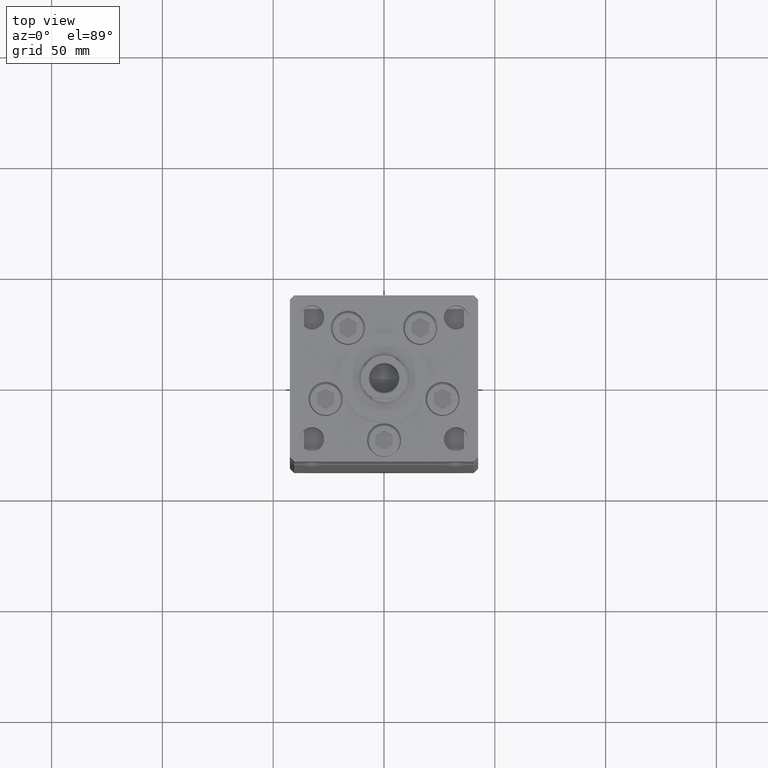
[diagram: clean part render]
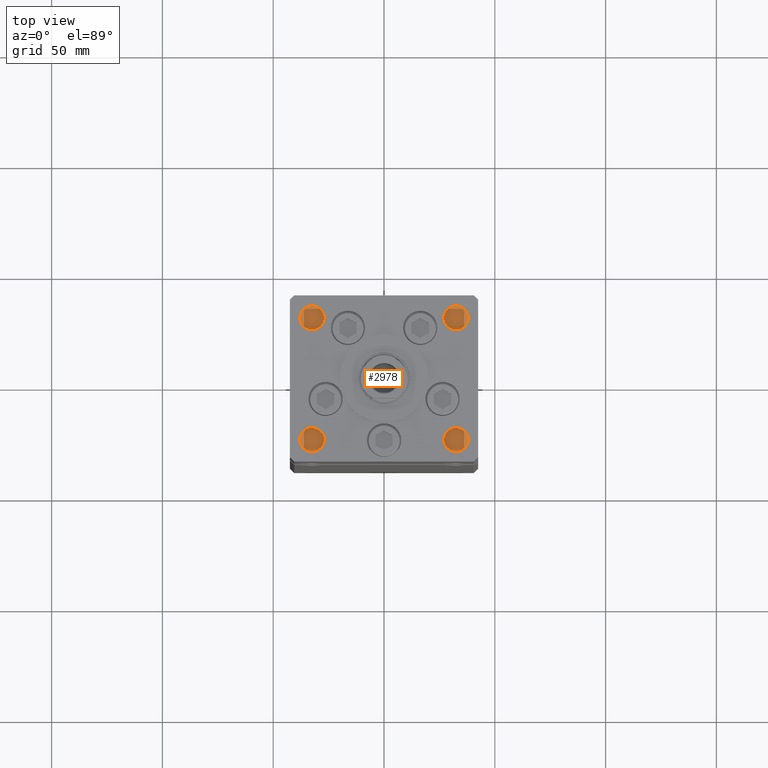
[diagram: same view with one face highlighted and labeled with its STEP entity id]
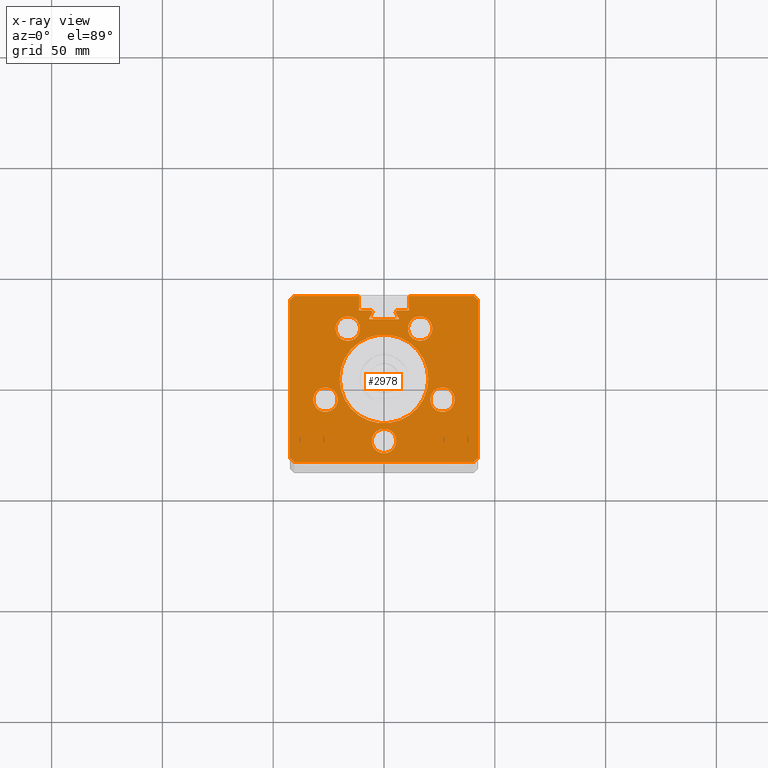
[diagram: x-ray of the same camera — body ghosted, the highlighted face saturated]
A machine part, top view. The second image highlights one B-rep face of the part: STEP entity #2978.
The next image is the same camera in x-ray: the body ghosted, the highlighted face saturated — about 0% of this face is hidden behind the body in this view.
In plain terms, the highlighted planar face has unit normal (0, 0, -1).
Its self-contained STEP definition (entity closure, byte-faithful):
#157 = DIRECTION ( 'NONE',  ( 0.000000000000000000, 1.000000000000000000, 0.000000000000000000 ) ) ;
#755 = ORIENTED_EDGE ( 'NONE', *, *, #21797, .F. ) ;
#1193 = CARTESIAN_POINT ( 'NONE',  ( 6.876153656360465938, 26.99999999999986855, 268.5000000000000000 ) ) ;
#1241 = VECTOR ( 'NONE', #157, 1000.000000000000000 ) ;
#1281 = VERTEX_POINT ( 'NONE', #1944 ) ;
#1813 = ORIENTED_EDGE ( 'NONE', *, *, #29935, .T. ) ;
#1944 = CARTESIAN_POINT ( 'NONE',  ( -5.375042956467946276, 29.59999999999899600, 268.4999999999999432 ) ) ;
#2127 = VERTEX_POINT ( 'NONE', #31535 ) ;
#2390 = CARTESIAN_POINT ( 'NONE',  ( -5.249999999999996447, 30.06666666666599852, 268.5000000000000000 ) ) ;
#2395 = ORIENTED_EDGE ( 'NONE', *, *, #21157, .T. ) ;
#2490 = VERTEX_POINT ( 'NONE', #5924 ) ;
#2543 = ORIENTED_EDGE ( 'NONE', *, *, #42906, .F. ) ;
#2668 = DIRECTION ( 'NONE',  ( 1.000000000000000000, 0.000000000000000000, 0.000000000000000000 ) ) ;
#2723 = ORIENTED_EDGE ( 'NONE', *, *, #47527, .F. ) ;
#2773 = CARTESIAN_POINT ( 'NONE',  ( -42.49999999999998579, -35.50000000000000711, 268.5000000000000000 ) ) ;
#2978 = ADVANCED_FACE ( 'NONE', ( #32462, #49374, #21162, #9034, #20644, #20887, #16869 ), #28689, .F. ) ;
#3154 = DIRECTION ( 'NONE',  ( 0.4999999999999993894, -0.8660254037844390407, 0.000000000000000000 ) ) ;
#3249 = EDGE_CURVE ( 'NONE', #31814, #48472, #27319, .T. ) ;
#3881 = DIRECTION ( 'NONE',  ( -0.7071067811865500152, -0.7071067811865451302, 0.000000000000000000 ) ) ;
#4047 = VERTEX_POINT ( 'NONE', #38860 ) ;
#4222 = CARTESIAN_POINT ( 'NONE',  ( 0.000000000000000000, 0.000000000000000000, 268.5000000000000000 ) ) ;
#4441 = CARTESIAN_POINT ( 'NONE',  ( 1.714505518806294638E-15, -28.00000000000000000, 268.5000000000000000 ) ) ;
#4911 = DIRECTION ( 'NONE',  ( 0.7071067811865500152, -0.7071067811865451302, 0.000000000000000000 ) ) ;
#5236 = VERTEX_POINT ( 'NONE', #27316 ) ;
#5411 = EDGE_CURVE ( 'NONE', #11377, #51590, #25384, .T. ) ;
#5638 = LINE ( 'NONE', #10674, #32192 ) ;
#5641 = EDGE_CURVE ( 'NONE', #2490, #50063, #14970, .T. ) ;
#5924 = CARTESIAN_POINT ( 'NONE',  ( 20.89865316429777309, -9.333333333333339255, 268.5000000000000000 ) ) ;
#6040 = VERTEX_POINT ( 'NONE', #47175 ) ;
#6063 = VECTOR ( 'NONE', #3881, 1000.000000000000114 ) ;
#6450 = EDGE_CURVE ( 'NONE', #51590, #27564, #47379, .T. ) ;
#6695 = CARTESIAN_POINT ( 'NONE',  ( 6.183333333333997928, 30.06666666666599852, 268.5000000000000000 ) ) ;
#6832 = ORIENTED_EDGE ( 'NONE', *, *, #49275, .F. ) ;
#7112 = CARTESIAN_POINT ( 'NONE',  ( -42.50000000000001421, 35.50000000000000711, 268.5000000000000000 ) ) ;
#7232 = ORIENTED_EDGE ( 'NONE', *, *, #3249, .T. ) ;
#7359 = CIRCLE ( 'NONE', #12506, 5.499999999999998224 ) ;
#7485 = DIRECTION ( 'NONE',  ( -1.000000000000000000, 0.000000000000000000, 0.000000000000000000 ) ) ;
#7506 = ORIENTED_EDGE ( 'NONE', *, *, #20837, .F. ) ;
#7665 = DIRECTION ( 'NONE',  ( -0.000000000000000000, -1.000000000000000000, 0.000000000000000000 ) ) ;
#7693 = DIRECTION ( 'NONE',  ( 1.000000000000000000, 0.000000000000000000, 0.000000000000000000 ) ) ;
#8007 = CIRCLE ( 'NONE', #11464, 5.499999999999998224 ) ;
#8096 = EDGE_LOOP ( 'NONE', ( #24983, #49934 ) ) ;
#8697 = LINE ( 'NONE', #20301, #6063 ) ;
#8845 = DIRECTION ( 'NONE',  ( 1.000000000000000000, 0.000000000000000000, 0.000000000000000000 ) ) ;
#9034 = FACE_BOUND ( 'NONE', #8096, .T. ) ;
#9160 = EDGE_CURVE ( 'NONE', #31440, #50108, #46557, .T. ) ;
#9610 = CARTESIAN_POINT ( 'NONE',  ( 5.375042956467946276, 29.59999999999899600, 268.5000000000000000 ) ) ;
#10674 = CARTESIAN_POINT ( 'NONE',  ( 16.84845819336020867, 9.727461873366657130, 268.5000000000000000 ) ) ;
#10723 = CARTESIAN_POINT ( 'NONE',  ( -42.49999999999998579, -35.50000000000000711, 268.5000000000000000 ) ) ;
#11233 = CARTESIAN_POINT ( 'NONE',  ( 42.49999999999998579, -35.50000000000000711, 268.5000000000000000 ) ) ;
#11254 = VERTEX_POINT ( 'NONE', #51735 ) ;
#11318 = ORIENTED_EDGE ( 'NONE', *, *, #43283, .T. ) ;
#11322 = ORIENTED_EDGE ( 'NONE', *, *, #42922, .F. ) ;
#11377 = VERTEX_POINT ( 'NONE', #7112 ) ;
#11464 = AXIS2_PLACEMENT_3D ( 'NONE', #19979, #19459, #15677 ) ;
#12039 = LINE ( 'NONE', #24693, #44344 ) ;
#12211 = CARTESIAN_POINT ( 'NONE',  ( -31.89865316429776954, -9.333333333333342807, 268.5000000000000000 ) ) ;
#12283 = DIRECTION ( 'NONE',  ( 0.000000000000000000, 0.000000000000000000, -1.000000000000000000 ) ) ;
#12375 = DIRECTION ( 'NONE',  ( 1.000000000000000000, 0.000000000000000000, 0.000000000000000000 ) ) ;
#12390 = ORIENTED_EDGE ( 'NONE', *, *, #45587, .F. ) ;
#12506 = AXIS2_PLACEMENT_3D ( 'NONE', #39200, #47792, #30852 ) ;
#12600 = ORIENTED_EDGE ( 'NONE', *, *, #14714, .F. ) ;
#12653 = ORIENTED_EDGE ( 'NONE', *, *, #5411, .T. ) ;
#12656 = CARTESIAN_POINT ( 'NONE',  ( -16.32291334290543361, 22.74999999999999645, 268.5000000000000000 ) ) ;
#12872 = AXIS2_PLACEMENT_3D ( 'NONE', #29239, #41580, #17397 ) ;
#13029 = VERTEX_POINT ( 'NONE', #52147 ) ;
#13119 = VERTEX_POINT ( 'NONE', #30303 ) ;
#13140 = CARTESIAN_POINT ( 'NONE',  ( 11.24999999999999112, 37.50000000000000000, 268.5000000000000000 ) ) ;
#13164 = DIRECTION ( 'NONE',  ( 0.000000000000000000, 0.000000000000000000, 1.000000000000000000 ) ) ;
#13466 = DIRECTION ( 'NONE',  ( -1.000000000000000000, 0.000000000000000000, 0.000000000000000000 ) ) ;
#13540 = CARTESIAN_POINT ( 'NONE',  ( -5.499999999999998224, -28.00000000000000000, 268.5000000000000000 ) ) ;
#13723 = LINE ( 'NONE', #18030, #50934 ) ;
#14164 = CARTESIAN_POINT ( 'NONE',  ( -6.183333333333997928, 30.06666666666599852, 268.5000000000000000 ) ) ;
#14422 = CARTESIAN_POINT ( 'NONE',  ( -20.00000000000000000, 0.000000000000000000, 268.5000000000000000 ) ) ;
#14714 = EDGE_CURVE ( 'NONE', #39084, #31090, #47865, .T. ) ;
#14795 = LINE ( 'NONE', #43256, #35244 ) ;
#14970 = CIRCLE ( 'NONE', #30400, 5.499999999999998224 ) ;
#15015 = CIRCLE ( 'NONE', #22714, 5.500000000000000000 ) ;
#15427 = CARTESIAN_POINT ( 'NONE',  ( 11.24999999999999822, 31.00000000000000000, 268.5000000000000000 ) ) ;
#15677 = DIRECTION ( 'NONE',  ( 1.000000000000000000, 0.000000000000000000, 0.000000000000000000 ) ) ;
#15750 = DIRECTION ( 'NONE',  ( 0.000000000000000000, 0.000000000000000000, 1.000000000000000000 ) ) ;
#15778 = VERTEX_POINT ( 'NONE', #1193 ) ;
#16309 = CIRCLE ( 'NONE', #40311, 5.500000000000000000 ) ;
#16350 = CARTESIAN_POINT ( 'NONE',  ( -11.24999999999999822, 37.50000000000000000, 268.5000000000000000 ) ) ;
#16440 = ORIENTED_EDGE ( 'NONE', *, *, #39965, .F. ) ;
#16661 = CIRCLE ( 'NONE', #23531, 0.9333333333340008142 ) ;
#16673 = DIRECTION ( 'NONE',  ( 0.000000000000000000, 0.000000000000000000, 1.000000000000000000 ) ) ;
#16699 = VECTOR ( 'NONE', #50353, 1000.000000000000000 ) ;
#16869 = FACE_BOUND ( 'NONE', #43540, .T. ) ;
#17261 = EDGE_CURVE ( 'NONE', #15778, #2127, #13723, .T. ) ;
#17343 = LINE ( 'NONE', #33213, #1241 ) ;
#17397 = DIRECTION ( 'NONE',  ( 1.000000000000000000, 0.000000000000000000, 0.000000000000000000 ) ) ;
#17712 = EDGE_CURVE ( 'NONE', #50063, #2490, #8007, .T. ) ;
#17722 = CARTESIAN_POINT ( 'NONE',  ( 16.32291334290543361, 22.75000000000000000, 268.5000000000000000 ) ) ;
#17829 = ORIENTED_EDGE ( 'NONE', *, *, #17712, .F. ) ;
#17885 = ORIENTED_EDGE ( 'NONE', *, *, #39895, .F. ) ;
#17996 = LINE ( 'NONE', #33578, #32196 ) ;
#18030 = CARTESIAN_POINT ( 'NONE',  ( 0.000000000000000000, 26.99999999999986855, 268.5000000000000000 ) ) ;
#18946 = ORIENTED_EDGE ( 'NONE', *, *, #51975, .T. ) ;
#19071 = ORIENTED_EDGE ( 'NONE', *, *, #9160, .F. ) ;
#19100 = CARTESIAN_POINT ( 'NONE',  ( -6.183333333333997928, 30.06666666666599852, 268.5000000000000000 ) ) ;
#19287 = VERTEX_POINT ( 'NONE', #2390 ) ;
#19321 = CARTESIAN_POINT ( 'NONE',  ( 0.000000000000000000, 31.00000000000000000, 268.5000000000000000 ) ) ;
#19425 = EDGE_CURVE ( 'NONE', #35185, #40169, #21782, .T. ) ;
#19459 = DIRECTION ( 'NONE',  ( 0.000000000000000000, 0.000000000000000000, 1.000000000000000000 ) ) ;
#19507 = ORIENTED_EDGE ( 'NONE', *, *, #44739, .F. ) ;
#19525 = EDGE_CURVE ( 'NONE', #4047, #19287, #16661, .T. ) ;
#19590 = LINE ( 'NONE', #19321, #44996 ) ;
#19979 = CARTESIAN_POINT ( 'NONE',  ( 26.39865316429776954, -9.333333333333339255, 268.5000000000000000 ) ) ;
#20198 = ORIENTED_EDGE ( 'NONE', *, *, #20256, .T. ) ;
#20199 = VECTOR ( 'NONE', #7665, 1000.000000000000000 ) ;
#20256 = EDGE_CURVE ( 'NONE', #48472, #13119, #19590, .T. ) ;
#20301 = CARTESIAN_POINT ( 'NONE',  ( -40.50000000000000711, 37.50000000000000000, 268.5000000000000000 ) ) ;
#20606 = DIRECTION ( 'NONE',  ( 0.000000000000000000, 0.000000000000000000, 1.000000000000000000 ) ) ;
#20644 = FACE_BOUND ( 'NONE', #52265, .T. ) ;
#20837 = EDGE_CURVE ( 'NONE', #5236, #39084, #29374, .T. ) ;
#20887 = FACE_OUTER_BOUND ( 'NONE', #50372, .T. ) ;
#21157 = EDGE_CURVE ( 'NONE', #22243, #15778, #5638, .T. ) ;
#21162 = FACE_BOUND ( 'NONE', #31500, .T. ) ;
#21639 = LINE ( 'NONE', #34520, #36010 ) ;
#21696 = VERTEX_POINT ( 'NONE', #35537 ) ;
#21715 = ORIENTED_EDGE ( 'NONE', *, *, #49825, .F. ) ;
#21782 = CIRCLE ( 'NONE', #51830, 20.00000000000000000 ) ;
#21797 = EDGE_CURVE ( 'NONE', #36234, #40365, #27018, .T. ) ;
#21855 = CARTESIAN_POINT ( 'NONE',  ( -11.24999999999999822, 37.50000000000000000, 268.5000000000000000 ) ) ;
#22243 = VERTEX_POINT ( 'NONE', #9610 ) ;
#22263 = ORIENTED_EDGE ( 'NONE', *, *, #5641, .F. ) ;
#22322 = DIRECTION ( 'NONE',  ( 1.000000000000000000, 0.000000000000000000, 0.000000000000000000 ) ) ;
#22553 = VERTEX_POINT ( 'NONE', #13540 ) ;
#22714 = AXIS2_PLACEMENT_3D ( 'NONE', #48197, #22971, #35577 ) ;
#22971 = DIRECTION ( 'NONE',  ( 0.000000000000000000, 0.000000000000000000, 1.000000000000000000 ) ) ;
#23531 = AXIS2_PLACEMENT_3D ( 'NONE', #14164, #30550, #46933 ) ;
#23617 = DIRECTION ( 'NONE',  ( -1.000000000000000000, 0.000000000000000000, 0.000000000000000000 ) ) ;
#23708 = EDGE_CURVE ( 'NONE', #40365, #36234, #7359, .T. ) ;
#23726 = AXIS2_PLACEMENT_3D ( 'NONE', #49314, #15750, #40210 ) ;
#23988 = DIRECTION ( 'NONE',  ( 0.000000000000000000, 0.000000000000000000, 1.000000000000000000 ) ) ;
#24053 = CIRCLE ( 'NONE', #12872, 5.500000000000000000 ) ;
#24163 = ORIENTED_EDGE ( 'NONE', *, *, #48930, .T. ) ;
#24693 = CARTESIAN_POINT ( 'NONE',  ( 0.000000000000000000, 31.00000000000000000, 268.5000000000000000 ) ) ;
#24710 = ORIENTED_EDGE ( 'NONE', *, *, #19425, .F. ) ;
#24983 = ORIENTED_EDGE ( 'NONE', *, *, #25035, .F. ) ;
#25035 = EDGE_CURVE ( 'NONE', #13029, #21696, #38277, .T. ) ;
#25068 = LINE ( 'NONE', #41436, #39167 ) ;
#25384 = LINE ( 'NONE', #33953, #16699 ) ;
#25614 = CARTESIAN_POINT ( 'NONE',  ( 20.00000000000000000, 2.449293598294706513E-15, 268.5000000000000000 ) ) ;
#27001 = EDGE_LOOP ( 'NONE', ( #17885, #19507 ) ) ;
#27018 = CIRCLE ( 'NONE', #39901, 5.499999999999998224 ) ;
#27316 = CARTESIAN_POINT ( 'NONE',  ( 40.50000000000000711, 37.50000000000000000, 268.5000000000000000 ) ) ;
#27319 = LINE ( 'NONE', #52298, #20199 ) ;
#27564 = VERTEX_POINT ( 'NONE', #41688 ) ;
#27865 = VECTOR ( 'NONE', #4911, 1000.000000000000114 ) ;
#28285 = CARTESIAN_POINT ( 'NONE',  ( -26.39865316429776954, -9.333333333333342807, 268.5000000000000000 ) ) ;
#28689 = PLANE ( 'NONE',  #42452 ) ;
#28920 = CARTESIAN_POINT ( 'NONE',  ( 5.500000000000001776, -28.00000000000000000, 268.5000000000000000 ) ) ;
#29239 = CARTESIAN_POINT ( 'NONE',  ( 1.714505518806294638E-15, -28.00000000000000000, 268.5000000000000000 ) ) ;
#29257 = CIRCLE ( 'NONE', #51580, 20.00000000000000000 ) ;
#29374 = LINE ( 'NONE', #38231, #27865 ) ;
#29935 = EDGE_CURVE ( 'NONE', #2127, #1281, #25068, .T. ) ;
#30073 = DIRECTION ( 'NONE',  ( 1.000000000000000000, 0.000000000000000000, 0.000000000000000000 ) ) ;
#30303 = CARTESIAN_POINT ( 'NONE',  ( 6.183333333333997928, 31.00000000000000000, 268.5000000000000000 ) ) ;
#30400 = AXIS2_PLACEMENT_3D ( 'NONE', #32786, #16673, #33056 ) ;
#30482 = EDGE_CURVE ( 'NONE', #4047, #11254, #12039, .T. ) ;
#30550 = DIRECTION ( 'NONE',  ( 0.000000000000000000, 0.000000000000000000, -1.000000000000000000 ) ) ;
#30852 = DIRECTION ( 'NONE',  ( 1.000000000000000000, 0.000000000000000000, 0.000000000000000000 ) ) ;
#31090 = VERTEX_POINT ( 'NONE', #11233 ) ;
#31440 = VERTEX_POINT ( 'NONE', #32590 ) ;
#31500 = EDGE_LOOP ( 'NONE', ( #17829, #22263 ) ) ;
#31535 = CARTESIAN_POINT ( 'NONE',  ( -6.876153656360465938, 26.99999999999986855, 268.5000000000000000 ) ) ;
#31814 = VERTEX_POINT ( 'NONE', #13140 ) ;
#32192 = VECTOR ( 'NONE', #3154, 999.9999999999998863 ) ;
#32196 = VECTOR ( 'NONE', #8845, 1000.000000000000000 ) ;
#32462 = FACE_BOUND ( 'NONE', #53076, .T. ) ;
#32590 = CARTESIAN_POINT ( 'NONE',  ( -40.50000000000000711, 37.50000000000000000, 268.5000000000000000 ) ) ;
#32786 = CARTESIAN_POINT ( 'NONE',  ( 26.39865316429776954, -9.333333333333339255, 268.5000000000000000 ) ) ;
#32837 = VERTEX_POINT ( 'NONE', #38932 ) ;
#32947 = CIRCLE ( 'NONE', #37201, 0.9333333333340008142 ) ;
#33056 = DIRECTION ( 'NONE',  ( 1.000000000000000000, 0.000000000000000000, 0.000000000000000000 ) ) ;
#33213 = CARTESIAN_POINT ( 'NONE',  ( -11.24999999999999822, 0.000000000000000000, 268.5000000000000000 ) ) ;
#33289 = AXIS2_PLACEMENT_3D ( 'NONE', #17722, #34092, #46702 ) ;
#33578 = CARTESIAN_POINT ( 'NONE',  ( -40.49999999999998579, -37.50000000000000711, 268.5000000000000000 ) ) ;
#33588 = ORIENTED_EDGE ( 'NONE', *, *, #17261, .T. ) ;
#33884 = EDGE_CURVE ( 'NONE', #21696, #13029, #50425, .T. ) ;
#33953 = CARTESIAN_POINT ( 'NONE',  ( -42.50000000000001421, 35.50000000000000711, 268.5000000000000000 ) ) ;
#34092 = DIRECTION ( 'NONE',  ( 0.000000000000000000, 0.000000000000000000, 1.000000000000000000 ) ) ;
#34309 = DIRECTION ( 'NONE',  ( 1.000000000000000000, 0.000000000000000000, 0.000000000000000000 ) ) ;
#34520 = CARTESIAN_POINT ( 'NONE',  ( 42.49999999999998579, -35.50000000000000711, 268.5000000000000000 ) ) ;
#35161 = AXIS2_PLACEMENT_3D ( 'NONE', #12656, #13164, #12375 ) ;
#35185 = VERTEX_POINT ( 'NONE', #14422 ) ;
#35244 = VECTOR ( 'NONE', #39520, 1000.000000000000000 ) ;
#35537 = CARTESIAN_POINT ( 'NONE',  ( 10.82291334290543894, 22.75000000000000000, 268.5000000000000000 ) ) ;
#35577 = DIRECTION ( 'NONE',  ( 1.000000000000000000, 0.000000000000000000, 0.000000000000000000 ) ) ;
#35712 = ORIENTED_EDGE ( 'NONE', *, *, #23708, .F. ) ;
#35769 = CARTESIAN_POINT ( 'NONE',  ( 42.50000000000001421, 35.50000000000000711, 268.5000000000000000 ) ) ;
#36010 = VECTOR ( 'NONE', #50909, 1000.000000000000114 ) ;
#36041 = CIRCLE ( 'NONE', #35161, 5.500000000000000000 ) ;
#36234 = VERTEX_POINT ( 'NONE', #12211 ) ;
#37124 = CARTESIAN_POINT ( 'NONE',  ( 40.49999999999998579, -37.50000000000000711, 268.5000000000000000 ) ) ;
#37201 = AXIS2_PLACEMENT_3D ( 'NONE', #6695, #42970, #2668 ) ;
#37301 = CARTESIAN_POINT ( 'NONE',  ( 31.89865316429776954, -9.333333333333339255, 268.5000000000000000 ) ) ;
#37537 = DIRECTION ( 'NONE',  ( -1.000000000000000000, 0.000000000000000000, -0.000000000000000000 ) ) ;
#37816 = DIRECTION ( 'NONE',  ( -0.000000000000000000, 0.000000000000000000, 1.000000000000000000 ) ) ;
#38156 = VECTOR ( 'NONE', #43361, 1000.000000000000114 ) ;
#38231 = CARTESIAN_POINT ( 'NONE',  ( 40.50000000000000711, 37.50000000000000000, 268.5000000000000000 ) ) ;
#38277 = CIRCLE ( 'NONE', #23726, 5.499999999999998224 ) ;
#38773 = DIRECTION ( 'NONE',  ( 1.000000000000000000, 0.000000000000000000, 0.000000000000000000 ) ) ;
#38860 = CARTESIAN_POINT ( 'NONE',  ( -6.183333333333997928, 31.00000000000000000, 268.5000000000000000 ) ) ;
#38932 = CARTESIAN_POINT ( 'NONE',  ( -10.82291334290543539, 22.74999999999999645, 268.5000000000000000 ) ) ;
#39084 = VERTEX_POINT ( 'NONE', #49063 ) ;
#39105 = VERTEX_POINT ( 'NONE', #28920 ) ;
#39167 = VECTOR ( 'NONE', #41184, 999.9999999999998863 ) ;
#39200 = CARTESIAN_POINT ( 'NONE',  ( -26.39865316429776954, -9.333333333333342807, 268.5000000000000000 ) ) ;
#39520 = DIRECTION ( 'NONE',  ( 1.000000000000000000, 0.000000000000000000, 0.000000000000000000 ) ) ;
#39895 = EDGE_CURVE ( 'NONE', #39105, #22553, #16309, .T. ) ;
#39901 = AXIS2_PLACEMENT_3D ( 'NONE', #28285, #23988, #40372 ) ;
#39965 = EDGE_CURVE ( 'NONE', #31090, #42717, #21639, .T. ) ;
#40169 = VERTEX_POINT ( 'NONE', #25614 ) ;
#40210 = DIRECTION ( 'NONE',  ( 1.000000000000000000, 0.000000000000000000, 0.000000000000000000 ) ) ;
#40311 = AXIS2_PLACEMENT_3D ( 'NONE', #4441, #20606, #7693 ) ;
#40365 = VERTEX_POINT ( 'NONE', #51924 ) ;
#40372 = DIRECTION ( 'NONE',  ( 1.000000000000000000, 0.000000000000000000, 0.000000000000000000 ) ) ;
#41184 = DIRECTION ( 'NONE',  ( 0.4999999999999993894, 0.8660254037844390407, 0.000000000000000000 ) ) ;
#41436 = CARTESIAN_POINT ( 'NONE',  ( -16.84845819336020867, 9.727461873366657130, 268.5000000000000000 ) ) ;
#41580 = DIRECTION ( 'NONE',  ( 0.000000000000000000, 0.000000000000000000, 1.000000000000000000 ) ) ;
#41688 = CARTESIAN_POINT ( 'NONE',  ( -40.49999999999998579, -37.50000000000000711, 268.5000000000000000 ) ) ;
#41691 = VECTOR ( 'NONE', #38773, 1000.000000000000000 ) ;
#42364 = CARTESIAN_POINT ( 'NONE',  ( 0.000000000000000000, 0.000000000000000000, 268.5000000000000000 ) ) ;
#42452 = AXIS2_PLACEMENT_3D ( 'NONE', #4222, #12283, #37537 ) ;
#42717 = VERTEX_POINT ( 'NONE', #37124 ) ;
#42906 = EDGE_CURVE ( 'NONE', #31814, #5236, #14795, .T. ) ;
#42922 = EDGE_CURVE ( 'NONE', #19287, #1281, #48101, .T. ) ;
#42970 = DIRECTION ( 'NONE',  ( 0.000000000000000000, 0.000000000000000000, -1.000000000000000000 ) ) ;
#43208 = DIRECTION ( 'NONE',  ( -0.000000000000000000, 0.000000000000000000, 1.000000000000000000 ) ) ;
#43256 = CARTESIAN_POINT ( 'NONE',  ( -11.24999999999999822, 37.50000000000000000, 268.5000000000000000 ) ) ;
#43283 = EDGE_CURVE ( 'NONE', #31440, #11377, #8697, .T. ) ;
#43361 = DIRECTION ( 'NONE',  ( 0.7071067811865474617, -0.7071067811865474617, 0.000000000000000000 ) ) ;
#43540 = EDGE_LOOP ( 'NONE', ( #24710, #2723 ) ) ;
#44091 = DIRECTION ( 'NONE',  ( -3.909236002201255146E-16, -1.000000000000000000, 0.000000000000000000 ) ) ;
#44344 = VECTOR ( 'NONE', #7485, 1000.000000000000000 ) ;
#44739 = EDGE_CURVE ( 'NONE', #22553, #39105, #24053, .T. ) ;
#44996 = VECTOR ( 'NONE', #23617, 1000.000000000000000 ) ;
#45587 = EDGE_CURVE ( 'NONE', #32837, #6040, #36041, .T. ) ;
#46557 = LINE ( 'NONE', #21855, #41691 ) ;
#46702 = DIRECTION ( 'NONE',  ( 1.000000000000000000, 0.000000000000000000, 0.000000000000000000 ) ) ;
#46708 = CARTESIAN_POINT ( 'NONE',  ( 0.000000000000000000, 0.000000000000000000, 268.5000000000000000 ) ) ;
#46933 = DIRECTION ( 'NONE',  ( 1.000000000000000000, 0.000000000000000000, 0.000000000000000000 ) ) ;
#47175 = CARTESIAN_POINT ( 'NONE',  ( -21.82291334290543361, 22.74999999999999645, 268.5000000000000000 ) ) ;
#47379 = LINE ( 'NONE', #2773, #38156 ) ;
#47527 = EDGE_CURVE ( 'NONE', #40169, #35185, #29257, .T. ) ;
#47792 = DIRECTION ( 'NONE',  ( 0.000000000000000000, 0.000000000000000000, 1.000000000000000000 ) ) ;
#47865 = LINE ( 'NONE', #35769, #50821 ) ;
#48101 = CIRCLE ( 'NONE', #48974, 0.9333333333340008142 ) ;
#48197 = CARTESIAN_POINT ( 'NONE',  ( -16.32291334290543361, 22.74999999999999645, 268.5000000000000000 ) ) ;
#48472 = VERTEX_POINT ( 'NONE', #15427 ) ;
#48922 = ORIENTED_EDGE ( 'NONE', *, *, #30482, .T. ) ;
#48930 = EDGE_CURVE ( 'NONE', #27564, #42717, #17996, .T. ) ;
#48974 = AXIS2_PLACEMENT_3D ( 'NONE', #19100, #51871, #22322 ) ;
#49063 = CARTESIAN_POINT ( 'NONE',  ( 42.50000000000001421, 35.50000000000000711, 268.5000000000000000 ) ) ;
#49275 = EDGE_CURVE ( 'NONE', #6040, #32837, #15015, .T. ) ;
#49314 = CARTESIAN_POINT ( 'NONE',  ( 16.32291334290543361, 22.75000000000000000, 268.5000000000000000 ) ) ;
#49374 = FACE_BOUND ( 'NONE', #27001, .T. ) ;
#49825 = EDGE_CURVE ( 'NONE', #22243, #13119, #32947, .T. ) ;
#49934 = ORIENTED_EDGE ( 'NONE', *, *, #33884, .F. ) ;
#50063 = VERTEX_POINT ( 'NONE', #37301 ) ;
#50108 = VERTEX_POINT ( 'NONE', #16350 ) ;
#50353 = DIRECTION ( 'NONE',  ( 3.909236002201255146E-16, -1.000000000000000000, 0.000000000000000000 ) ) ;
#50372 = EDGE_LOOP ( 'NONE', ( #48922, #18946, #19071, #11318, #12653, #51640, #24163, #16440, #12600, #7506, #2543, #7232, #20198, #21715, #2395, #33588, #1813, #11322, #52697 ) ) ;
#50425 = CIRCLE ( 'NONE', #33289, 5.499999999999998224 ) ;
#50821 = VECTOR ( 'NONE', #44091, 1000.000000000000000 ) ;
#50909 = DIRECTION ( 'NONE',  ( -0.7071067811865474617, -0.7071067811865474617, 0.000000000000000000 ) ) ;
#50934 = VECTOR ( 'NONE', #13466, 1000.000000000000000 ) ;
#51580 = AXIS2_PLACEMENT_3D ( 'NONE', #46708, #43208, #30073 ) ;
#51590 = VERTEX_POINT ( 'NONE', #10723 ) ;
#51640 = ORIENTED_EDGE ( 'NONE', *, *, #6450, .T. ) ;
#51735 = CARTESIAN_POINT ( 'NONE',  ( -11.24999999999999822, 31.00000000000000000, 268.5000000000000000 ) ) ;
#51830 = AXIS2_PLACEMENT_3D ( 'NONE', #42364, #37816, #34309 ) ;
#51871 = DIRECTION ( 'NONE',  ( 0.000000000000000000, 0.000000000000000000, -1.000000000000000000 ) ) ;
#51924 = CARTESIAN_POINT ( 'NONE',  ( -20.89865316429777309, -9.333333333333342807, 268.5000000000000000 ) ) ;
#51975 = EDGE_CURVE ( 'NONE', #11254, #50108, #17343, .T. ) ;
#52147 = CARTESIAN_POINT ( 'NONE',  ( 21.82291334290543361, 22.75000000000000000, 268.5000000000000000 ) ) ;
#52265 = EDGE_LOOP ( 'NONE', ( #12390, #6832 ) ) ;
#52298 = CARTESIAN_POINT ( 'NONE',  ( 11.24999999999999822, 0.000000000000000000, 268.5000000000000000 ) ) ;
#52697 = ORIENTED_EDGE ( 'NONE', *, *, #19525, .F. ) ;
#53076 = EDGE_LOOP ( 'NONE', ( #35712, #755 ) ) ;